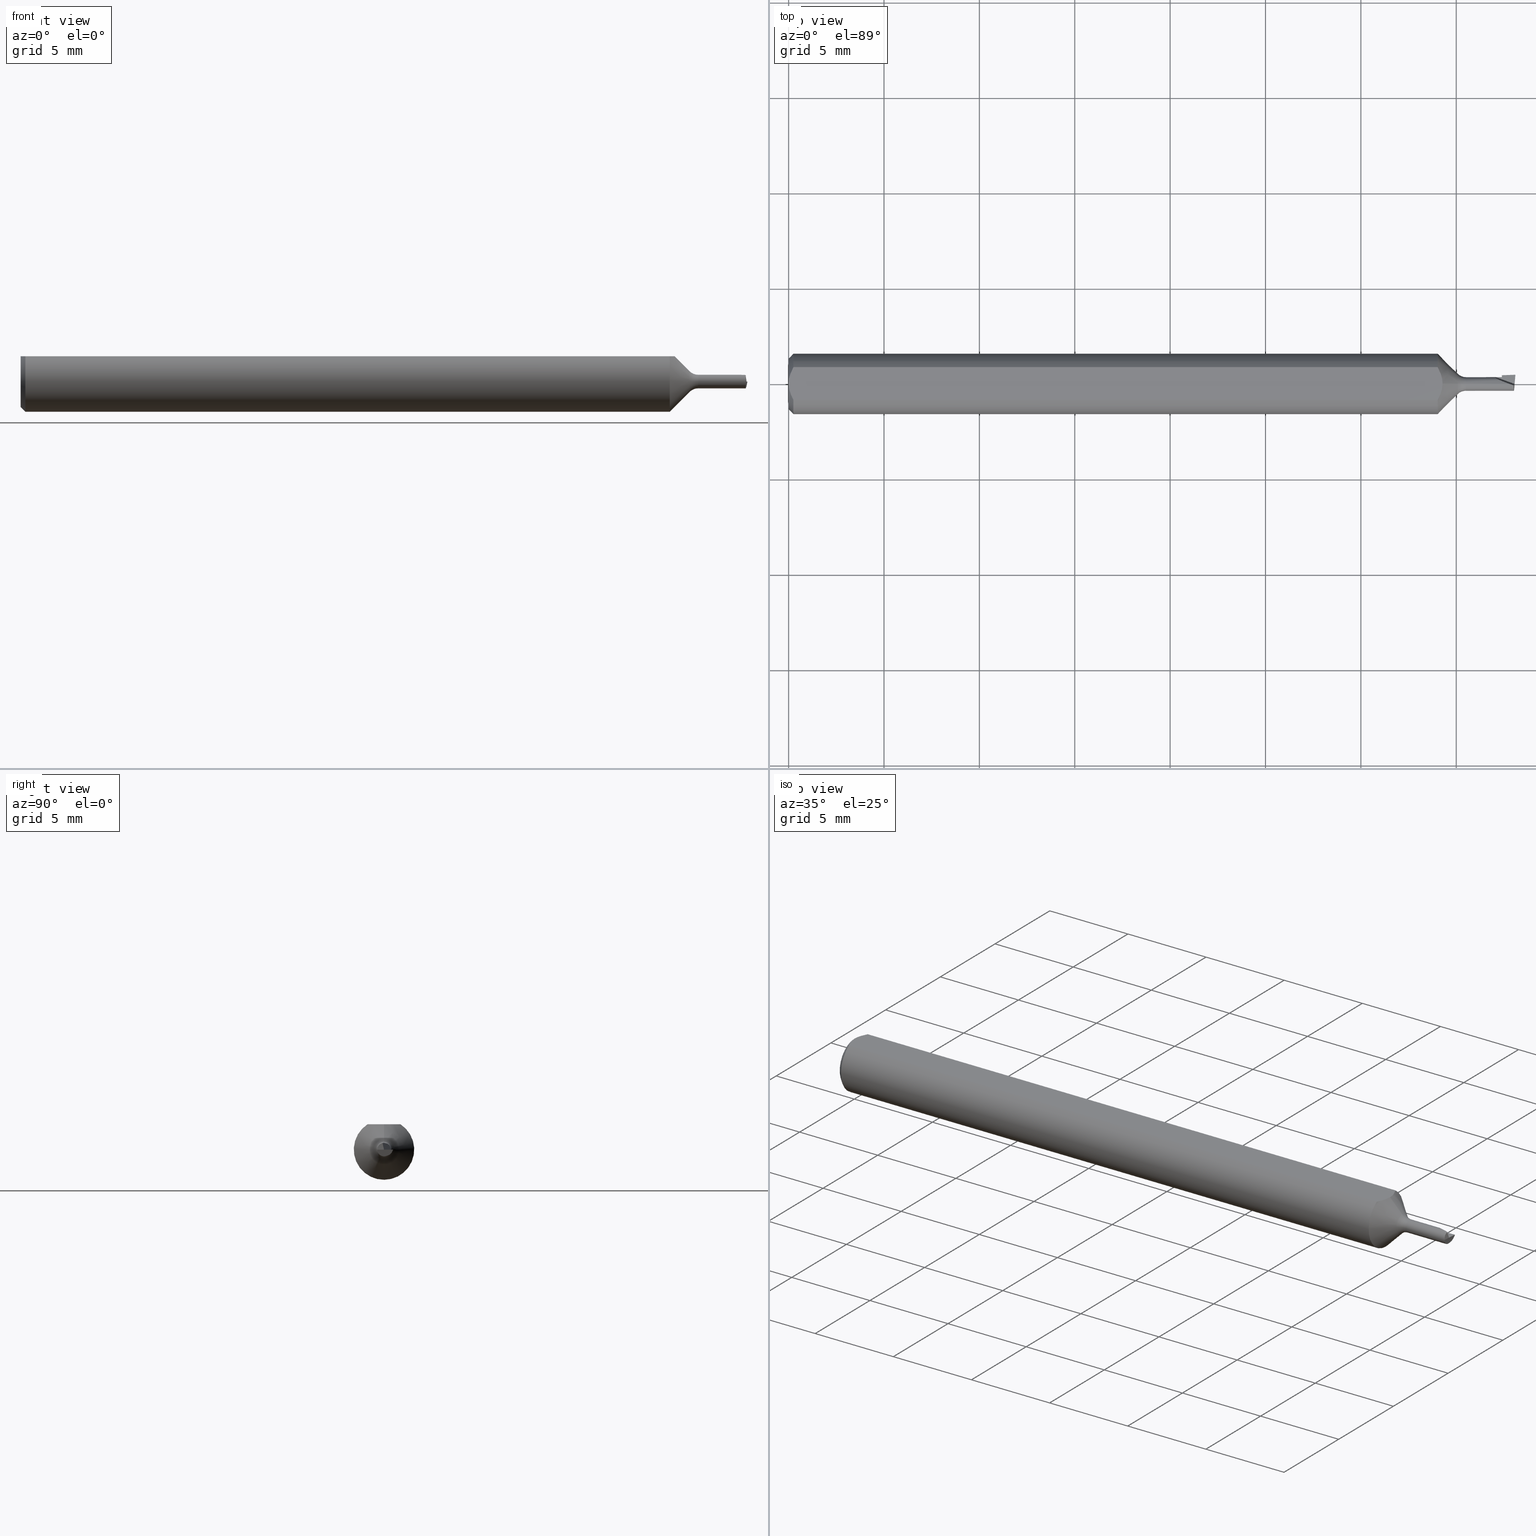
[diagram: canonical four-view strip — front | top / right | iso, engineering-drawing reading convention]
A machine part, canonical four-view strip (front | top / right | iso — engineering-drawing reading convention). The complete STEP part file that produces these views, byte-faithful:
ISO-10303-21;
HEADER;
FILE_DESCRIPTION (( 'STEP AP203' ),
    '1' );
FILE_NAME ('210022-MB035100.STEP',
    '2025-01-29T00:55:24',
    ( '' ),
    ( '' ),
    'SwSTEP 2.0',
    'SolidWorks 2024',
    '' );
FILE_SCHEMA (( 'CONFIG_CONTROL_DESIGN' ));
ENDSEC;

DATA;
#1 = DIRECTION ( 'NONE',  ( 4.188400406518391662E-17, 1.150753554054429622E-16, -1.000000000000000000 ) ) ;
#2 = ORIENTED_EDGE ( 'NONE', *, *, #119, .F. ) ;
#3 = AXIS2_PLACEMENT_3D ( 'NONE', #605, #601, #114 ) ;
#4 = DIRECTION ( 'NONE',  ( 0.000000000000000000, 0.000000000000000000, 1.000000000000000000 ) ) ;
#5 = CARTESIAN_POINT ( 'NONE',  ( 1.495955894638859140, -0.01400000000000024836, -0.008201010126776540551 ) ) ;
#6 = ADVANCED_FACE ( 'NONE', ( #384 ), #142, .F. ) ;
#7 = EDGE_LOOP ( 'NONE', ( #477, #140, #108, #398, #572 ) ) ;
#8 = LENGTH_MEASURE_WITH_UNIT ( LENGTH_MEASURE( 0.02539999999999999897 ), #408 );
#9 = CARTESIAN_POINT ( 'NONE',  ( 1.398355339059327296, 0.000000000000000000, 0.000000000000000000 ) ) ;
#10 = VERTEX_POINT ( 'NONE', #245 ) ;
#11 = B_SPLINE_CURVE_WITH_KNOTS ( 'NONE', 3,
 ( #488, #257, #293, #485, #393, #101 ),
 .UNSPECIFIED., .F., .F.,
 ( 4, 2, 4 ),
 ( 0.0009229516234078821539, 0.001371626545108044996, 0.001820301466808207621 ),
 .UNSPECIFIED. ) ;
#12 = EDGE_CURVE ( 'NONE', #629, #254, #440, .T. ) ;
#13 = CARTESIAN_POINT ( 'NONE',  ( 1.498337715393007308, 5.146152409351648335E-34, -4.471984806147503012E-18 ) ) ;
#14 = CARTESIAN_POINT ( 'NONE',  ( 1.471999999999999975, 0.01715059310839218629, -0.008656183423197036028 ) ) ;
#15 = ORIENTED_EDGE ( 'NONE', *, *, #361, .F. ) ;
#16 = DIRECTION ( 'NONE',  ( 0.9864997997699033183, -0.08630754905047478831, 0.1391731009600657154 ) ) ;
#17 = DIRECTION ( 'NONE',  ( 0.9396926207859126468, -0.3420201433256568335, 0.000000000000000000 ) ) ;
#18 =( NAMED_UNIT ( * ) PLANE_ANGLE_UNIT ( ) SI_UNIT ( $, .RADIAN. ) );
#19 = CARTESIAN_POINT ( 'NONE',  ( 1.339650000000000007, 0.000000000000000000, 0.000000000000000000 ) ) ;
#20 = EDGE_CURVE ( 'NONE', #10, #148, #331, .T. ) ;
#21 = COORDINATED_UNIVERSAL_TIME_OFFSET ( 8, 0, .BEHIND. ) ;
#22 = CARTESIAN_POINT ( 'NONE',  ( 1.496362627902979137, 1.714505518806302634E-18, -0.01400000000000006795 ) ) ;
#23 = SHAPE_DEFINITION_REPRESENTATION ( #627, #347 ) ;
#24 = DIRECTION ( 'NONE',  ( -0.1627401076574671590, -0.4218543546513214282, -0.8919386530593642615 ) ) ;
#25 = B_SPLINE_CURVE_WITH_KNOTS ( 'NONE', 3,
 ( #221, #621, #322, #275, #468, #429 ),
 .UNSPECIFIED., .F., .F.,
 ( 4, 2, 4 ),
 ( 0.001820301466808207621, 0.002269751589840481119, 0.002719201712872754834 ),
 .UNSPECIFIED. ) ;
#26 = ORIENTED_EDGE ( 'NONE', *, *, #634, .T. ) ;
#27 = TOROIDAL_SURFACE ( 'NONE', #242, 0.03900000000000000688, 0.02499999999999986955 ) ;
#28 = EDGE_CURVE ( 'NONE', #505, #48, #390, .T. ) ;
#29 = CARTESIAN_POINT ( 'NONE',  ( 1.487340442959101727, 0.000000000000000000, 0.01400000000000006795 ) ) ;
#30 = VERTEX_POINT ( 'NONE', #156 ) ;
#31 = PERSON_AND_ORGANIZATION ( #584, #445 ) ;
#32 = CC_DESIGN_PERSON_AND_ORGANIZATION_ASSIGNMENT ( #265, #406, ( #632 ) ) ;
#33 = CIRCLE ( 'NONE', #197, 0.02132233047033647161 ) ;
#34 = DIRECTION ( 'NONE',  ( -1.000000000000000000, -0.000000000000000000, -0.000000000000000000 ) ) ;
#35 = VERTEX_POINT ( 'NONE', #441 ) ;
#36 = LINE ( 'NONE', #418, #223 ) ;
#37 = EDGE_CURVE ( 'NONE', #469, #490, #272, .T. ) ;
#38 = LOCAL_TIME ( 16, 55, 24.00000000000000000, #624 ) ;
#39 = VERTEX_POINT ( 'NONE', #348 ) ;
#40 = DIRECTION ( 'NONE',  ( 0.000000000000000000, -0.4228298219691066784, -0.9062091048171904140 ) ) ;
#41 = ORIENTED_EDGE ( 'NONE', *, *, #97, .F. ) ;
#42 = CC_DESIGN_PERSON_AND_ORGANIZATION_ASSIGNMENT ( #470, #232, ( #312 ) ) ;
#43 = LINE ( 'NONE', #237, #590 ) ;
#44 = ORIENTED_EDGE ( 'NONE', *, *, #97, .T. ) ;
#45 = ORIENTED_EDGE ( 'NONE', *, *, #20, .F. ) ;
#46 = DIRECTION ( 'NONE',  ( -1.000000000000000000, -0.000000000000000000, -0.000000000000000000 ) ) ;
#47 = DIRECTION ( 'NONE',  ( -1.000000000000000000, -0.000000000000000000, -0.000000000000000000 ) ) ;
#48 = VERTEX_POINT ( 'NONE', #603 ) ;
#49 = EDGE_CURVE ( 'NONE', #365, #209, #158, .T. ) ;
#50 = VECTOR ( 'NONE', #514, 39.37007874015748854 ) ;
#51 = DIRECTION ( 'NONE',  ( 1.000000000000000000, 0.000000000000000000, 0.000000000000000000 ) ) ;
#52 = DIRECTION ( 'NONE',  ( 0.000000000000000000, 0.000000000000000000, 1.000000000000000000 ) ) ;
#53 = CARTESIAN_POINT ( 'NONE',  ( 1.380677669529663865, 2.611232376085963916E-18, -0.02132233047033647161 ) ) ;
#54 = PRODUCT_DEFINITION ( 'UNKNOWN', '', #228, #227 ) ;
#55 = CARTESIAN_POINT ( 'NONE',  ( 1.496362627902979137, 1.714505518806302634E-18, -0.01400000000000006795 ) ) ;
#56 = AXIS2_PLACEMENT_3D ( 'NONE', #9, #344, #58 ) ;
#57 = DIRECTION ( 'NONE',  ( 0.000000000000000000, 0.000000000000000000, -1.000000000000000000 ) ) ;
#58 = DIRECTION ( 'NONE',  ( 0.000000000000000000, 0.000000000000000000, 1.000000000000000000 ) ) ;
#59 = EDGE_CURVE ( 'NONE', #306, #626, #301, .T. ) ;
#60 = ORIENTED_EDGE ( 'NONE', *, *, #375, .T. ) ;
#61 = CARTESIAN_POINT ( 'NONE',  ( 0.000000000000000000, -0.03386738844375220686, 0.05235000000000000070 ) ) ;
#62 = ORIENTED_EDGE ( 'NONE', *, *, #203, .F. ) ;
#63 = LINE ( 'NONE', #164, #50 ) ;
#64 = DIRECTION ( 'NONE',  ( -1.000000000000000000, -0.000000000000000000, -0.000000000000000000 ) ) ;
#65 = AXIS2_PLACEMENT_3D ( 'NONE', #329, #81, #319 ) ;
#66 = ORIENTED_EDGE ( 'NONE', *, *, #622, .T. ) ;
#67 = LINE ( 'NONE', #512, #608 ) ;
#68 = APPROVAL_PERSON_ORGANIZATION ( #109, #230, #424 ) ;
#69 = CARTESIAN_POINT ( 'NONE',  ( 1.339650000000000007, 0.03386738844375220686, 0.05235000000000000070 ) ) ;
#70 = ADVANCED_FACE ( 'NONE', ( #340 ), #434, .F. ) ;
#71 = DIRECTION ( 'NONE',  ( -1.000000000000000000, 0.000000000000000000, -0.000000000000000000 ) ) ;
#72 = LINE ( 'NONE', #13, #609 ) ;
#73 = DIRECTION ( 'NONE',  ( 0.1396943646708924958, 0.000000000000000000, -0.9901946699913082295 ) ) ;
#74 = PLANE ( 'NONE',  #241 ) ;
#75 = EDGE_LOOP ( 'NONE', ( #212, #259, #623, #153 ) ) ;
#76 = EDGE_CURVE ( 'NONE', #10, #578, #195, .T. ) ;
#77 = CARTESIAN_POINT ( 'NONE',  ( 0.000000000000000000, 0.000000000000000000, 0.000000000000000000 ) ) ;
#78 = ORIENTED_EDGE ( 'NONE', *, *, #28, .F. ) ;
#79 = AXIS2_PLACEMENT_3D ( 'NONE', #351, #64, #218 ) ;
#80 = VECTOR ( 'NONE', #239, 39.37007874015748854 ) ;
#81 = DIRECTION ( 'NONE',  ( -1.000000000000000000, -0.000000000000000000, -0.000000000000000000 ) ) ;
#82 = ORIENTED_EDGE ( 'NONE', *, *, #602, .F. ) ;
#83 = CALENDAR_DATE ( 2025, 28, 1 ) ;
#84 = EDGE_CURVE ( 'NONE', #180, #490, #328, .T. ) ;
#85 = CIRCLE ( 'NONE', #65, 0.05235000000000033377 ) ;
#86 = LINE ( 'NONE', #132, #262 ) ;
#87 = EDGE_LOOP ( 'NONE', ( #453, #309, #60, #531, #537 ) ) ;
#88 = AXIS2_PLACEMENT_3D ( 'NONE', #596, #295, #252 ) ;
#89 = FACE_OUTER_BOUND ( 'NONE', #220, .T. ) ;
#90 = EDGE_CURVE ( 'NONE', #48, #302, #644, .T. ) ;
#91 = ORIENTED_EDGE ( 'NONE', *, *, #90, .F. ) ;
#92 = ORIENTED_EDGE ( 'NONE', *, *, #49, .T. ) ;
#93 = LINE ( 'NONE', #290, #116 ) ;
#94 = ORIENTED_EDGE ( 'NONE', *, *, #483, .F. ) ;
#95 = FACE_OUTER_BOUND ( 'NONE', #278, .T. ) ;
#96 = CARTESIAN_POINT ( 'NONE',  ( 0.009999999999999887451, 0.000000000000000000, 0.000000000000000000 ) ) ;
#97 = EDGE_CURVE ( 'NONE', #302, #600, #11, .T. ) ;
#98 = CARTESIAN_POINT ( 'NONE',  ( 1.339650000000000007, -0.03386738844375220686, 0.05235000000000000070 ) ) ;
#99 = DIRECTION ( 'NONE',  ( 0.1293675338645381145, 0.9317961139776900215, 0.3391460498927904021 ) ) ;
#100 = CARTESIAN_POINT ( 'NONE',  ( 1.349650000000000238, 0.005921060704595571683, 0.05235000000000002152 ) ) ;
#101 = CARTESIAN_POINT ( 'NONE',  ( 0.000000000000000000, 0.000000000000000000, 0.05235000000000033377 ) ) ;
#102 = CARTESIAN_POINT ( 'NONE',  ( 1.490212539364918376, -0.001045357601660149016, 0.01400000000000006968 ) ) ;
#103 = ADVANCED_FACE ( 'NONE', ( #449 ), #495, .T. ) ;
#104 = CARTESIAN_POINT ( 'NONE',  ( 1.495645132487424922, -0.008201010126776844128, -0.01400000000000006795 ) ) ;
#105 = ORIENTED_EDGE ( 'NONE', *, *, #37, .T. ) ;
#106 = CARTESIAN_POINT ( 'NONE',  ( 1.348578451796299094, -0.01191733704899615789, 0.05235000000000002152 ) ) ;
#107 = DIRECTION ( 'NONE',  ( -1.000000000000000000, -0.000000000000000000, -0.000000000000000000 ) ) ;
#108 = ORIENTED_EDGE ( 'NONE', *, *, #12, .F. ) ;
#109 = PERSON_AND_ORGANIZATION ( #584, #445 ) ;
#110 = CONICAL_SURFACE ( 'NONE', #323, 0.05235000000000033377, 0.7853981633974376209 ) ;
#111 = CARTESIAN_POINT ( 'NONE',  ( 1.500296196177055341, 0.02238553779562375834, 4.140457115397399095E-16 ) ) ;
#112 = B_SPLINE_CURVE_WITH_KNOTS ( 'NONE', 3,
 ( #540, #394, #106, #256, #595, #98 ),
 .UNSPECIFIED., .F., .F.,
 ( 4, 2, 4 ),
 ( 0.002995647966321671272, 0.003444829281114806727, 0.003894010595907941748 ),
 .UNSPECIFIED. ) ;
#113 = ORIENTED_EDGE ( 'NONE', *, *, #513, .F. ) ;
#114 = DIRECTION ( 'NONE',  ( 1.000000000000000000, 0.000000000000000000, 0.000000000000000000 ) ) ;
#115 = CARTESIAN_POINT ( 'NONE',  ( 1.471999999999999975, 0.01730310589320959921, -0.001541202432580578109 ) ) ;
#116 = VECTOR ( 'NONE', #179, 39.37007874015748143 ) ;
#117 = ADVANCED_FACE ( 'NONE', ( #592 ), #639, .F. ) ;
#118 = CARTESIAN_POINT ( 'NONE',  ( 1.398355339059327296, 1.714505518806310916E-18, -0.01400000000000013560 ) ) ;
#119 = EDGE_CURVE ( 'NONE', #148, #35, #377, .T. ) ;
#120 = COORDINATED_UNIVERSAL_TIME_OFFSET ( 8, 0, .BEHIND. ) ;
#121 = FACE_OUTER_BOUND ( 'NONE', #570, .T. ) ;
#122 = CARTESIAN_POINT ( 'NONE',  ( 0.000000000000000000, 0.000000000000000000, 0.01400000000000006795 ) ) ;
#123 = EDGE_CURVE ( 'NONE', #542, #365, #298, .T. ) ;
#124 = ORIENTED_EDGE ( 'NONE', *, *, #199, .T. ) ;
#125 = COORDINATED_UNIVERSAL_TIME_OFFSET ( 8, 0, .BEHIND. ) ;
#126 = FACE_OUTER_BOUND ( 'NONE', #137, .T. ) ;
#127 = ORIENTED_EDGE ( 'NONE', *, *, #175, .T. ) ;
#128 = DATE_TIME_ROLE ( 'classification_date' ) ;
#129 = CARTESIAN_POINT ( 'NONE',  ( 1.495771991143534096, -0.009748761780967543991, 0.01214095763564205545 ) ) ;
#130 = VERTEX_POINT ( 'NONE', #364 ) ;
#131 = AXIS2_PLACEMENT_3D ( 'NONE', #508, #16, #73 ) ;
#132 = CARTESIAN_POINT ( 'NONE',  ( 1.498061498182345908, 0.01245110719910164088, -0.009679404705626219740 ) ) ;
#133 = ORIENTED_EDGE ( 'NONE', *, *, #327, .F. ) ;
#134 = EDGE_CURVE ( 'NONE', #337, #231, #67, .T. ) ;
#135 = SECURITY_CLASSIFICATION_LEVEL ( 'unclassified' ) ;
#136 = CARTESIAN_POINT ( 'NONE',  ( 0.000000000000000000, 1.714505518806302634E-18, -0.01400000000000006795 ) ) ;
#137 = EDGE_LOOP ( 'NONE', ( #177, #124, #281, #631, #431, #326 ) ) ;
#138 = AXIS2_PLACEMENT_3D ( 'NONE', #396, #150, #546 ) ;
#139 =( BOUNDED_CURVE ( )  B_SPLINE_CURVE ( 3, ( #412, #615, #563, #463 ),
 .UNSPECIFIED., .F., .T. ) 
 B_SPLINE_CURVE_WITH_KNOTS ( ( 4, 4 ),
 ( 4.990162771046303014, 6.560959097841198684 ),
 .UNSPECIFIED. ) 
 CURVE ( )  GEOMETRIC_REPRESENTATION_ITEM ( )  RATIONAL_B_SPLINE_CURVE ( ( 1.000000000000000000, 0.8047378541243652705, 0.8047378541243652705, 1.000000000000000000 ) ) 
 REPRESENTATION_ITEM ( '' )  );
#140 = ORIENTED_EDGE ( 'NONE', *, *, #564, .T. ) ;
#141 = DATE_AND_TIME ( #576, #38 ) ;
#142 = PLANE ( 'NONE',  #410 ) ;
#143 = CARTESIAN_POINT ( 'NONE',  ( 1.470115918604895766, 0.01515687352215219601, -0.005999999999999994053 ) ) ;
#144 = ORIENTED_EDGE ( 'NONE', *, *, #216, .F. ) ;
#145 = CARTESIAN_POINT ( 'NONE',  ( 0.009999999999999887451, 0.000000000000000000, 0.000000000000000000 ) ) ;
#146 = AXIS2_PLACEMENT_3D ( 'NONE', #471, #34, #225 ) ;
#147 = CARTESIAN_POINT ( 'NONE',  ( 1.496505873018313171, 0.001637299160382967370, -0.01400000000000006101 ) ) ;
#148 = VERTEX_POINT ( 'NONE', #22 ) ;
#149 = CARTESIAN_POINT ( 'NONE',  ( 1.344987470951200415, 0.02320690041070301232, 0.05235000000000002152 ) ) ;
#150 = DIRECTION ( 'NONE',  ( -0.9864997997699062049, 0.08630754905046410241, 0.1391731009600518376 ) ) ;
#151 = ADVANCED_FACE ( 'NONE', ( #172 ), #213, .T. ) ;
#152 = DIRECTION ( 'NONE',  ( 0.000000000000000000, -0.7073221891495885538, -0.7068913075831626536 ) ) ;
#153 = ORIENTED_EDGE ( 'NONE', *, *, #49, .F. ) ;
#154 = CC_DESIGN_PERSON_AND_ORGANIZATION_ASSIGNMENT ( #271, #224, ( #228 ) ) ;
#155 = CARTESIAN_POINT ( 'NONE',  ( 0.000000000000000000, 0.000000000000000000, 0.000000000000000000 ) ) ;
#156 = CARTESIAN_POINT ( 'NONE',  ( 1.380677669529663865, 2.611232376085951590E-18, -0.02132233047033637099 ) ) ;
#157 = ORIENTED_EDGE ( 'NONE', *, *, #327, .T. ) ;
#158 = LINE ( 'NONE', #496, #249 ) ;
#159 = EDGE_LOOP ( 'NONE', ( #238, #516, #349, #610 ) ) ;
#160 = MECHANICAL_CONTEXT ( 'NONE', #200, 'mechanical' ) ;
#161 = CONICAL_SURFACE ( 'NONE', #277, 0.02132233047033647161, 0.7853981633974437271 ) ;
#162 = LINE ( 'NONE', #311, #359 ) ;
#163 = EDGE_CURVE ( 'NONE', #352, #490, #553, .T. ) ;
#164 = CARTESIAN_POINT ( 'NONE',  ( 0.9559111876246143558, 3.129011652829888628E-33, -2.719097970026246924E-17 ) ) ;
#165 = DIRECTION ( 'NONE',  ( -0.000000000000000000, 1.000000000000000000, 1.224646799147353207E-16 ) ) ;
#166 = AXIS2_PLACEMENT_3D ( 'NONE', #425, #579, #40 ) ;
#167 = APPLICATION_PROTOCOL_DEFINITION ( 'international standard', 'config_control_design', 1994, #200 ) ;
#168 = AXIS2_PLACEMENT_3D ( 'NONE', #643, #1, #544 ) ;
#169 = FACE_OUTER_BOUND ( 'NONE', #191, .T. ) ;
#170 = ADVANCED_FACE ( 'NONE', ( #316 ), #433, .F. ) ;
#171 = LOCAL_TIME ( 16, 55, 24.00000000000000000, #120 ) ;
#172 = FACE_OUTER_BOUND ( 'NONE', #443, .T. ) ;
#173 = VERTEX_POINT ( 'NONE', #219 ) ;
#174 = APPROVAL_DATE_TIME ( #141, #264 ) ;
#175 = EDGE_CURVE ( 'NONE', #39, #580, #607, .T. ) ;
#176 = CYLINDRICAL_SURFACE ( 'NONE', #146, 0.06235000000000000264 ) ;
#177 = ORIENTED_EDGE ( 'NONE', *, *, #12, .T. ) ;
#178 = DIMENSIONAL_EXPONENTS ( 1.000000000000000000, 0.000000000000000000, 0.000000000000000000, 0.000000000000000000, 0.000000000000000000, 0.000000000000000000, 0.000000000000000000 ) ;
#179 = DIRECTION ( 'NONE',  ( 1.000000000000000000, 0.000000000000000000, 0.000000000000000000 ) ) ;
#180 = VERTEX_POINT ( 'NONE', #118 ) ;
#181 = DIRECTION ( 'NONE',  ( 0.000000000000000000, 0.000000000000000000, 1.000000000000000000 ) ) ;
#182 = ORIENTED_EDGE ( 'NONE', *, *, #20, .T. ) ;
#183 = ADVANCED_FACE ( 'NONE', ( #515 ), #74, .F. ) ;
#184 = DIRECTION ( 'NONE',  ( 0.000000000000000000, 0.000000000000000000, 1.000000000000000000 ) ) ;
#185 = ORIENTED_EDGE ( 'NONE', *, *, #622, .F. ) ;
#186 = APPLICATION_CONTEXT ( 'configuration controlled 3d designs of mechanical parts and assemblies' ) ;
#187 = LINE ( 'NONE', #582, #282 ) ;
#188 = ORIENTED_EDGE ( 'NONE', *, *, #554, .F. ) ;
#189 = EDGE_CURVE ( 'NONE', #352, #173, #139, .T. ) ;
#190 = LINE ( 'NONE', #61, #637 ) ;
#191 = EDGE_LOOP ( 'NONE', ( #404, #26, #428, #15 ) ) ;
#192 = AXIS2_PLACEMENT_3D ( 'NONE', #569, #507, #269 ) ;
#193 = CIRCLE ( 'NONE', #556, 0.02132233047033647161 ) ;
#194 = CARTESIAN_POINT ( 'NONE',  ( 1.380677669529663865, 0.000000000000000000, 0.000000000000000000 ) ) ;
#195 = LINE ( 'NONE', #304, #528 ) ;
#196 = DIRECTION ( 'NONE',  ( 0.000000000000000000, 0.000000000000000000, 1.000000000000000000 ) ) ;
#197 = AXIS2_PLACEMENT_3D ( 'NONE', #625, #628, #184 ) ;
#198 = DIRECTION ( 'NONE',  ( 0.000000000000000000, 0.000000000000000000, -1.000000000000000000 ) ) ;
#199 = EDGE_CURVE ( 'NONE', #254, #480, #555, .T. ) ;
#200 = APPLICATION_CONTEXT ( 'configuration controlled 3d designs of mechanical parts and assemblies' ) ;
#201 = CARTESIAN_POINT ( 'NONE',  ( 1.497812481840041787, 0.01135586058943797300, -0.01076529357563074142 ) ) ;
#202 = CC_DESIGN_APPROVAL ( #264, ( #312 ) ) ;
#203 = EDGE_CURVE ( 'NONE', #39, #35, #618, .T. ) ;
#204 = EDGE_LOOP ( 'NONE', ( #234, #82, #185, #263, #133 ) ) ;
#205 = CARTESIAN_POINT ( 'NONE',  ( 1.349650000000000238, -3.532469938474420466E-21, 0.05235000000000001458 ) ) ;
#206 = CARTESIAN_POINT ( 'NONE',  ( 1.398355339059327296, 0.000000000000000000, 0.03900000000000000688 ) ) ;
#207 = ORIENTED_EDGE ( 'NONE', *, *, #258, .F. ) ;
#208 = DIRECTION ( 'NONE',  ( 0.000000000000000000, 0.000000000000000000, 1.000000000000000000 ) ) ;
#209 = VERTEX_POINT ( 'NONE', #503 ) ;
#210 = ADVANCED_FACE ( 'NONE', ( #169 ), #261, .T. ) ;
#211 = CARTESIAN_POINT ( 'NONE',  ( 1.497253126782585930, -0.001536370480482567372, 0.006735109514287551322 ) ) ;
#212 = ORIENTED_EDGE ( 'NONE', *, *, #461, .T. ) ;
#213 = CYLINDRICAL_SURFACE ( 'NONE', #79, 0.01400000000000006795 ) ;
#214 = CARTESIAN_POINT ( 'NONE',  ( 1.380677669529663865, 0.000000000000000000, 0.000000000000000000 ) ) ;
#215 = DIRECTION ( 'NONE',  ( 0.000000000000000000, 0.3420201433256629953, -0.9396926207859105373 ) ) ;
#216 = EDGE_CURVE ( 'NONE', #626, #209, #362, .T. ) ;
#217 = APPROVAL_DATE_TIME ( #459, #370 ) ;
#218 = DIRECTION ( 'NONE',  ( 0.000000000000000000, 0.000000000000000000, 1.000000000000000000 ) ) ;
#219 = CARTESIAN_POINT ( 'NONE',  ( 1.459843793476639284, 0.01400000000000005407, -4.473209412501315043E-18 ) ) ;
#220 = EDGE_LOOP ( 'NONE', ( #450, #330 ) ) ;
#221 = CARTESIAN_POINT ( 'NONE',  ( 0.000000000000000000, 0.000000000000000000, 0.05235000000000033377 ) ) ;
#222 = ORIENTED_EDGE ( 'NONE', *, *, #602, .T. ) ;
#223 = VECTOR ( 'NONE', #229, 39.37007874015748854 ) ;
#224 = PERSON_AND_ORGANIZATION_ROLE ( 'design_supplier' ) ;
#225 = DIRECTION ( 'NONE',  ( 0.000000000000000000, 0.000000000000000000, 1.000000000000000000 ) ) ;
#226 = ORIENTED_EDGE ( 'NONE', *, *, #504, .F. ) ;
#227 = DESIGN_CONTEXT ( 'detailed design', #186, 'design' ) ;
#228 = PRODUCT_DEFINITION_FORMATION_WITH_SPECIFIED_SOURCE ( 'ANY', '', #632, .NOT_KNOWN. ) ;
#229 = DIRECTION ( 'NONE',  ( -0.9982962607160562607, -0.05482988347611531671, -0.01995644553358989076 ) ) ;
#230 = APPROVAL ( #376, 'UNSPECIFIED' ) ;
#231 = VERTEX_POINT ( 'NONE', #403 ) ;
#232 = PERSON_AND_ORGANIZATION_ROLE ( 'classification_officer' ) ;
#233 = DIRECTION ( 'NONE',  ( 1.000000000000000000, 0.000000000000000000, 0.000000000000000000 ) ) ;
#234 = ORIENTED_EDGE ( 'NONE', *, *, #341, .T. ) ;
#235 = EDGE_CURVE ( 'NONE', #306, #542, #162, .T. ) ;
#236 = ORIENTED_EDGE ( 'NONE', *, *, #134, .T. ) ;
#237 = CARTESIAN_POINT ( 'NONE',  ( 1.405832867359513516, 0.03365836943178409507, -4.473209412501315043E-18 ) ) ;
#238 = ORIENTED_EDGE ( 'NONE', *, *, #346, .F. ) ;
#239 = DIRECTION ( 'NONE',  ( 0.9993908270190960952, 0.03489949670248750774, -0.000000000000000000 ) ) ;
#240 = CARTESIAN_POINT ( 'NONE',  ( 1.496362627902979137, 1.714505518806302634E-18, -0.01400000000000006795 ) ) ;
#241 = AXIS2_PLACEMENT_3D ( 'NONE', #273, #457, #71 ) ;
#242 = AXIS2_PLACEMENT_3D ( 'NONE', #292, #46, #196 ) ;
#243 = ORIENTED_EDGE ( 'NONE', *, *, #634, .F. ) ;
#244 = FACE_OUTER_BOUND ( 'NONE', #87, .T. ) ;
#245 = CARTESIAN_POINT ( 'NONE',  ( 1.496900660646560244, 0.004788282006559283106, -0.01315569669100274432 ) ) ;
#246 = CARTESIAN_POINT ( 'NONE',  ( 0.000000000000000000, 0.03386738844375220686, 0.05235000000000000070 ) ) ;
#247 = ADVANCED_FACE ( 'NONE', ( #121 ), #314, .F. ) ;
#248 = DIRECTION ( 'NONE',  ( 0.000000000000000000, -1.000000000000000000, 0.000000000000000000 ) ) ;
#249 = VECTOR ( 'NONE', #550, 39.37007874015748854 ) ;
#250 = ORIENTED_EDGE ( 'NONE', *, *, #84, .F. ) ;
#251 = CARTESIAN_POINT ( 'NONE',  ( 1.339650000000000007, -0.03386738844375220686, 0.05235000000000000070 ) ) ;
#252 = DIRECTION ( 'NONE',  ( 0.000000000000000000, 0.000000000000000000, 1.000000000000000000 ) ) ;
#253 = APPROVAL_PERSON_ORGANIZATION ( #31, #264, #462 ) ;
#254 = VERTEX_POINT ( 'NONE', #460 ) ;
#255 = AXIS2_PLACEMENT_3D ( 'NONE', #452, #215, #409 ) ;
#256 = CARTESIAN_POINT ( 'NONE',  ( 1.344984136213919879, -0.02321572383389658781, 0.05235000000000001458 ) ) ;
#257 = CARTESIAN_POINT ( 'NONE',  ( 0.007185421074056205608, 0.02868573718286560742, 0.05235000000000002152 ) ) ;
#258 = EDGE_CURVE ( 'NONE', #30, #180, #338, .T. ) ;
#259 = ORIENTED_EDGE ( 'NONE', *, *, #305, .T. ) ;
#260 = LINE ( 'NONE', #354, #405 ) ;
#261 = PLANE ( 'NONE',  #255 ) ;
#262 = VECTOR ( 'NONE', #479, 39.37007874015748143 ) ;
#263 = ORIENTED_EDGE ( 'NONE', *, *, #235, .F. ) ;
#264 = APPROVAL ( #415, 'UNSPECIFIED' ) ;
#265 = PERSON_AND_ORGANIZATION ( #584, #445 ) ;
#266 = DIRECTION ( 'NONE',  ( -0.1550261498412154604, -0.2183092626835780037, 0.9634873941531157948 ) ) ;
#267 = DIRECTION ( 'NONE',  ( 0.000000000000000000, -0.4228298219691066784, -0.9062091048171904140 ) ) ;
#268 =( CONVERSION_BASED_UNIT ( 'INCH', #8 ) LENGTH_UNIT ( ) NAMED_UNIT ( #178 ) );
#269 = DIRECTION ( 'NONE',  ( 0.000000000000000000, 0.000000000000000000, 1.000000000000000000 ) ) ;
#270 = CC_DESIGN_PERSON_AND_ORGANIZATION_ASSIGNMENT ( #534, #466, ( #228 ) ) ;
#271 = PERSON_AND_ORGANIZATION ( #584, #445 ) ;
#272 = CIRCLE ( 'NONE', #633, 0.02499999999999986955 ) ;
#273 = CARTESIAN_POINT ( 'NONE',  ( 1.500000000000000222, 0.06235000000000000264, 0.05235000000000001458 ) ) ;
#274 = ORIENTED_EDGE ( 'NONE', *, *, #407, .F. ) ;
#275 = CARTESIAN_POINT ( 'NONE',  ( 0.004679365186825695105, -0.02325953974091124477, 0.05235000000000000764 ) ) ;
#276 = VECTOR ( 'NONE', #358, 39.37007874015748143 ) ;
#277 = AXIS2_PLACEMENT_3D ( 'NONE', #194, #294, #538 ) ;
#278 = EDGE_LOOP ( 'NONE', ( #78, #345, #41, #91 ) ) ;
#279 = ADVANCED_FACE ( 'NONE', ( #518 ), #535, .F. ) ;
#280 = DIRECTION ( 'NONE',  ( -0.7071067811865507924, 0.000000000000000000, 0.7071067811865442421 ) ) ;
#281 = ORIENTED_EDGE ( 'NONE', *, *, #513, .T. ) ;
#282 = VECTOR ( 'NONE', #280, 39.37007874015748143 ) ;
#283 = AXIS2_PLACEMENT_3D ( 'NONE', #437, #107, #208 ) ;
#284 = CARTESIAN_POINT ( 'NONE',  ( 1.471999999999999975, 0.01400000000000000203, 0.000000000000000000 ) ) ;
#285 = ORIENTED_EDGE ( 'NONE', *, *, #235, .T. ) ;
#286 = APPROVAL_PERSON_ORGANIZATION ( #357, #370, #561 ) ;
#287 = PLANE ( 'NONE',  #506 ) ;
#288 = ADVANCED_FACE ( 'NONE', ( #521 ), #529, .T. ) ;
#289 = EDGE_LOOP ( 'NONE', ( #597, #44, #419, #113, #94, #188 ) ) ;
#290 = CARTESIAN_POINT ( 'NONE',  ( 2.815793228919349341E-33, 0.01400000000000006795, -6.561731279301039999E-17 ) ) ;
#291 = ORIENTED_EDGE ( 'NONE', *, *, #258, .T. ) ;
#292 = CARTESIAN_POINT ( 'NONE',  ( 1.398355339059327296, 0.000000000000000000, 0.000000000000000000 ) ) ;
#293 = CARTESIAN_POINT ( 'NONE',  ( 0.004671770759546769666, 0.02323517832780105236, 0.05235000000000002152 ) ) ;
#294 = DIRECTION ( 'NONE',  ( -1.000000000000000000, -0.000000000000000000, -0.000000000000000000 ) ) ;
#295 = DIRECTION ( 'NONE',  ( -1.000000000000000000, -0.000000000000000000, -0.000000000000000000 ) ) ;
#296 = EDGE_CURVE ( 'NONE', #580, #35, #356, .T. ) ;
#297 = CARTESIAN_POINT ( 'NONE',  ( 0.000000000000000000, 0.000000000000000000, 0.000000000000000000 ) ) ;
#298 = LINE ( 'NONE', #115, #353 ) ;
#299 = DIRECTION ( 'NONE',  ( 1.000000000000000000, 0.000000000000000000, 0.000000000000000000 ) ) ;
#300 = CARTESIAN_POINT ( 'NONE',  ( 1.470115918604895766, 0.01515687352215219601, -0.005999999999999994053 ) ) ;
#301 = CIRCLE ( 'NONE', #283, 0.01400000000000000203 ) ;
#302 = VERTEX_POINT ( 'NONE', #373 ) ;
#303 = CARTESIAN_POINT ( 'NONE',  ( 1.398355339059327296, 0.000000000000000000, 0.01400000000000013560 ) ) ;
#304 = CARTESIAN_POINT ( 'NONE',  ( 1.497960045783344407, 0.01241872006294799519, -0.01037844436406525246 ) ) ;
#305 = EDGE_CURVE ( 'NONE', #231, #578, #86, .T. ) ;
#306 = VERTEX_POINT ( 'NONE', #573 ) ;
#307 = DIRECTION ( 'NONE',  ( -1.000000000000000000, -0.000000000000000000, -0.000000000000000000 ) ) ;
#308 = DIRECTION ( 'NONE',  ( -0.08715574274766191287, -0.9961946980917451011, -2.687938839382190035E-15 ) ) ;
#309 = ORIENTED_EDGE ( 'NONE', *, *, #593, .T. ) ;
#310 = CARTESIAN_POINT ( 'NONE',  ( 1.497112874103644131, -0.01400000000000007662, 3.158700231727869641E-16 ) ) ;
#311 = CARTESIAN_POINT ( 'NONE',  ( 1.471999999999999975, 0.01400000000000000203, -3.964058809059676423E-18 ) ) ;
#312 = SECURITY_CLASSIFICATION ( '', '', #135 ) ;
#313 = CALENDAR_DATE ( 2025, 28, 1 ) ;
#314 = PLANE ( 'NONE',  #438 ) ;
#315 =( NAMED_UNIT ( * ) SI_UNIT ( $, .STERADIAN. ) SOLID_ANGLE_UNIT ( ) );
#316 = FACE_OUTER_BOUND ( 'NONE', #317, .T. ) ;
#317 = EDGE_LOOP ( 'NONE', ( #574, #291, #533, #636 ) ) ;
#318 = DATE_AND_TIME ( #83, #532 ) ;
#319 = DIRECTION ( 'NONE',  ( 0.000000000000000000, 0.000000000000000000, -1.000000000000000000 ) ) ;
#320 = ORIENTED_EDGE ( 'NONE', *, *, #59, .F. ) ;
#321 = ADVANCED_FACE ( 'NONE', ( #333 ), #383, .F. ) ;
#322 = CARTESIAN_POINT ( 'NONE',  ( 0.001055043921644571291, -0.01186408073217194367, 0.05235000000000002152 ) ) ;
#323 = AXIS2_PLACEMENT_3D ( 'NONE', #399, #299, #342 ) ;
#324 = ORIENTED_EDGE ( 'NONE', *, *, #296, .F. ) ;
#325 = DIRECTION ( 'NONE',  ( 0.000000000000000000, 0.000000000000000000, -1.000000000000000000 ) ) ;
#326 = ORIENTED_EDGE ( 'NONE', *, *, #454, .T. ) ;
#327 = EDGE_CURVE ( 'NONE', #173, #306, #93, .T. ) ;
#328 = CIRCLE ( 'NONE', #56, 0.01400000000000013560 ) ;
#329 = CARTESIAN_POINT ( 'NONE',  ( 0.000000000000000000, 0.000000000000000000, 0.000000000000000000 ) ) ;
#330 = ORIENTED_EDGE ( 'NONE', *, *, #346, .T. ) ;
#331 =( BOUNDED_CURVE ( )  B_SPLINE_CURVE ( 3, ( #539, #401, #147, #240 ),
 .UNSPECIFIED., .F., .F. ) 
 B_SPLINE_CURVE_WITH_KNOTS ( ( 4, 4 ),
 ( 5.379018757165730413, 5.728084607564589703 ),
 .UNSPECIFIED. ) 
 CURVE ( )  GEOMETRIC_REPRESENTATION_ITEM ( )  RATIONAL_B_SPLINE_CURVE ( ( 1.000000000000000000, 0.9898718353414723836, 0.9898718353414723836, 1.000000000000000000 ) ) 
 REPRESENTATION_ITEM ( '' )  );
#332 = CC_DESIGN_SECURITY_CLASSIFICATION ( #312, ( #228 ) ) ;
#333 = FACE_OUTER_BOUND ( 'NONE', #482, .T. ) ;
#334 = ORIENTED_EDGE ( 'NONE', *, *, #59, .T. ) ;
#335 = VECTOR ( 'NONE', #566, 39.37007874015748854 ) ;
#336 = DIRECTION ( 'NONE',  ( 1.000000000000000000, 0.000000000000000000, 0.000000000000000000 ) ) ;
#337 = VERTEX_POINT ( 'NONE', #369 ) ;
#338 = CIRCLE ( 'NONE', #527, 0.02499999999999986955 ) ;
#339 = LINE ( 'NONE', #143, #80 ) ;
#340 = FACE_OUTER_BOUND ( 'NONE', #204, .T. ) ;
#341 = EDGE_CURVE ( 'NONE', #173, #39, #43, .T. ) ;
#342 = DIRECTION ( 'NONE',  ( 0.000000000000000000, 0.000000000000000000, -1.000000000000000000 ) ) ;
#343 = CARTESIAN_POINT ( 'NONE',  ( 1.339650000000000007, 0.03386738844375220686, 0.05235000000000000070 ) ) ;
#344 = DIRECTION ( 'NONE',  ( -1.000000000000000000, -0.000000000000000000, -0.000000000000000000 ) ) ;
#345 = ORIENTED_EDGE ( 'NONE', *, *, #575, .F. ) ;
#346 = EDGE_CURVE ( 'NONE', #505, #600, #85, .T. ) ;
#347 = ADVANCED_BREP_SHAPE_REPRESENTATION ( '210022-MB035100', ( #640, #3 ), #478 ) ;
#348 = CARTESIAN_POINT ( 'NONE',  ( 1.498336813090362263, -1.031336641984098816E-05, 2.948443803457594356E-16 ) ) ;
#349 = ORIENTED_EDGE ( 'NONE', *, *, #476, .F. ) ;
#350 = DATE_AND_TIME ( #363, #510 ) ;
#351 = CARTESIAN_POINT ( 'NONE',  ( 0.000000000000000000, 0.000000000000000000, 0.000000000000000000 ) ) ;
#352 = VERTEX_POINT ( 'NONE', #29 ) ;
#353 = VECTOR ( 'NONE', #267, 39.37007874015748143 ) ;
#354 = CARTESIAN_POINT ( 'NONE',  ( 1.560200597524541877, 0.004788282006559283974, -0.01315569669100274432 ) ) ;
#355 = DIRECTION ( 'NONE',  ( -0.000000000000000000, 1.000000000000000000, 1.150753554054429622E-16 ) ) ;
#356 =( BOUNDED_CURVE ( )  B_SPLINE_CURVE ( 3, ( #481, #129, #525, #577 ),
 .UNSPECIFIED., .F., .T. ) 
 B_SPLINE_CURVE_WITH_KNOTS ( ( 4, 4 ),
 ( 5.951623123754044897, 7.298880934359459616 ),
 .UNSPECIFIED. ) 
 CURVE ( )  GEOMETRIC_REPRESENTATION_ITEM ( )  RATIONAL_B_SPLINE_CURVE ( ( 1.000000000000000000, 0.8543753402904480376, 0.8543753402904480376, 1.000000000000000000 ) ) 
 REPRESENTATION_ITEM ( '' )  );
#357 = PERSON_AND_ORGANIZATION ( #584, #445 ) ;
#358 = DIRECTION ( 'NONE',  ( -1.000000000000000000, -0.000000000000000000, -0.000000000000000000 ) ) ;
#359 = VECTOR ( 'NONE', #355, 39.37007874015748143 ) ;
#360 = AXIS2_PLACEMENT_3D ( 'NONE', #96, #446, #198 ) ;
#361 = EDGE_CURVE ( 'NONE', #578, #209, #36, .T. ) ;
#362 = LINE ( 'NONE', #14, #335 ) ;
#363 = CALENDAR_DATE ( 2025, 28, 1 ) ;
#364 = CARTESIAN_POINT ( 'NONE',  ( 1.349650000000000238, -3.532469938474420466E-21, 0.05235000000000001458 ) ) ;
#365 = VERTEX_POINT ( 'NONE', #630 ) ;
#366 = CARTESIAN_POINT ( 'NONE',  ( 1.398355339059327296, 0.000000000000000000, 0.000000000000000000 ) ) ;
#367 = EDGE_CURVE ( 'NONE', #600, #551, #25, .T. ) ;
#368 = ORIENTED_EDGE ( 'NONE', *, *, #175, .F. ) ;
#369 = CARTESIAN_POINT ( 'NONE',  ( 1.499999999999999778, 0.01899999999999998912, -2.134256245050205639E-18 ) ) ;
#370 = APPROVAL ( #565, 'UNSPECIFIED' ) ;
#371 = EDGE_LOOP ( 'NONE', ( #127, #604, #62 ) ) ;
#372 = DATE_AND_TIME ( #381, #594 ) ;
#373 = CARTESIAN_POINT ( 'NONE',  ( 0.009999999999999890921, 0.03386738844375217911, 0.05235000000000001458 ) ) ;
#374 = ORIENTED_EDGE ( 'NONE', *, *, #341, .F. ) ;
#375 = EDGE_CURVE ( 'NONE', #469, #130, #187, .T. ) ;
#376 = APPROVAL_STATUS ( 'not_yet_approved' ) ;
#377 =( BOUNDED_CURVE ( )  B_SPLINE_CURVE ( 3, ( #55, #104, #5, #310 ),
 .UNSPECIFIED., .F., .F. ) 
 B_SPLINE_CURVE_WITH_KNOTS ( ( 4, 4 ),
 ( 5.728084607564589703, 7.298880934359509354 ),
 .UNSPECIFIED. ) 
 CURVE ( )  GEOMETRIC_REPRESENTATION_ITEM ( )  RATIONAL_B_SPLINE_CURVE ( ( 1.000000000000000000, 0.8047378541243596084, 0.8047378541243596084, 1.000000000000000000 ) ) 
 REPRESENTATION_ITEM ( '' )  );
#378 = LINE ( 'NONE', #136, #562 ) ;
#379 = ORIENTED_EDGE ( 'NONE', *, *, #123, .F. ) ;
#380 = ADVANCED_FACE ( 'NONE', ( #126 ), #176, .T. ) ;
#381 = CALENDAR_DATE ( 2025, 28, 1 ) ;
#382 = CLOSED_SHELL ( 'NONE', ( #288, #103, #170, #523, #247, #151, #321, #536, #492, #380, #413, #442, #70, #210, #279, #6, #117, #642, #183 ) ) ;
#383 = PLANE ( 'NONE',  #620 ) ;
#384 = FACE_OUTER_BOUND ( 'NONE', #75, .T. ) ;
#385 = CYLINDRICAL_SURFACE ( 'NONE', #585, 0.01400000000000006795 ) ;
#386 = ORIENTED_EDGE ( 'NONE', *, *, #163, .F. ) ;
#387 = CIRCLE ( 'NONE', #520, 0.06235000000000000264 ) ;
#388 = CARTESIAN_POINT ( 'NONE',  ( 0.000000000000000000, 0.000000000000000000, -0.05235000000000033377 ) ) ;
#389 = EDGE_CURVE ( 'NONE', #490, #180, #420, .T. ) ;
#390 = LINE ( 'NONE', #493, #549 ) ;
#391 = AXIS2_PLACEMENT_3D ( 'NONE', #77, #233, #427 ) ;
#392 = CARTESIAN_POINT ( 'NONE',  ( 1.342494366674541473, 0.02863089781642876377, 0.05235000000000002152 ) ) ;
#393 = CARTESIAN_POINT ( 'NONE',  ( -1.099542139246802830E-15, 0.005954997531773979953, 0.05235000000000002152 ) ) ;
#394 = CARTESIAN_POINT ( 'NONE',  ( 1.349650000000000238, -0.005923604052113098407, 0.05235000000000002152 ) ) ;
#395 = CC_DESIGN_APPROVAL ( #230, ( #228 ) ) ;
#396 = CARTESIAN_POINT ( 'NONE',  ( 1.495443673491786640, 0.02281007852008725550, -0.03465938240595513309 ) ) ;
#397 = EDGE_CURVE ( 'NONE', #469, #30, #33, .T. ) ;
#398 = ORIENTED_EDGE ( 'NONE', *, *, #554, .T. ) ;
#399 = CARTESIAN_POINT ( 'NONE',  ( 0.000000000000000000, 0.000000000000000000, 0.000000000000000000 ) ) ;
#400 = ORIENTED_EDGE ( 'NONE', *, *, #389, .T. ) ;
#401 = CARTESIAN_POINT ( 'NONE',  ( 1.496687052279564112, 0.003249724067528478311, -0.01371568598450397317 ) ) ;
#402 = ORIENTED_EDGE ( 'NONE', *, *, #189, .F. ) ;
#403 = CARTESIAN_POINT ( 'NONE',  ( 1.498905260308435183, 0.01616221948760026075, -0.005999999999999994053 ) ) ;
#404 = ORIENTED_EDGE ( 'NONE', *, *, #76, .F. ) ;
#405 = VECTOR ( 'NONE', #614, 39.37007874015748143 ) ;
#406 = PERSON_AND_ORGANIZATION_ROLE ( 'design_owner' ) ;
#407 = EDGE_CURVE ( 'NONE', #148, #180, #378, .T. ) ;
#408 =( LENGTH_UNIT ( ) NAMED_UNIT ( * ) SI_UNIT ( $, .METRE. ) );
#409 = DIRECTION ( 'NONE',  ( 0.000000000000000000, 0.9396926207859103153, 0.3420201433256629397 ) ) ;
#410 = AXIS2_PLACEMENT_3D ( 'NONE', #300, #599, #152 ) ;
#411 = PERSON_AND_ORGANIZATION_ROLE ( 'creator' ) ;
#412 = CARTESIAN_POINT ( 'NONE',  ( 1.487340442959101727, 0.000000000000000000, 0.01400000000000006795 ) ) ;
#413 = ADVANCED_FACE ( 'NONE', ( #89 ), #287, .F. ) ;
#414 = AXIS2_PLACEMENT_3D ( 'NONE', #19, #613, #416 ) ;
#415 = APPROVAL_STATUS ( 'not_yet_approved' ) ;
#416 = DIRECTION ( 'NONE',  ( 0.000000000000000000, 0.000000000000000000, 1.000000000000000000 ) ) ;
#417 = ORIENTED_EDGE ( 'NONE', *, *, #203, .T. ) ;
#418 = CARTESIAN_POINT ( 'NONE',  ( 1.559581083726037098, 0.01474840584595573691, -0.009530508083857301346 ) ) ;
#419 = ORIENTED_EDGE ( 'NONE', *, *, #367, .T. ) ;
#420 = CIRCLE ( 'NONE', #473, 0.01400000000000013560 ) ;
#421 = COORDINATED_UNIVERSAL_TIME_OFFSET ( 8, 0, .BEHIND. ) ;
#422 = DIRECTION ( 'NONE',  ( -1.000000000000000000, -0.000000000000000000, -0.000000000000000000 ) ) ;
#423 = ORIENTED_EDGE ( 'NONE', *, *, #163, .T. ) ;
#424 = APPROVAL_ROLE ( '' ) ;
#425 = CARTESIAN_POINT ( 'NONE',  ( 1.470018275189427071, 0.01795301509892537062, -2.215929918207309759E-18 ) ) ;
#426 = ORIENTED_EDGE ( 'NONE', *, *, #461, .F. ) ;
#427 = DIRECTION ( 'NONE',  ( 0.000000000000000000, 0.000000000000000000, -1.000000000000000000 ) ) ;
#428 = ORIENTED_EDGE ( 'NONE', *, *, #216, .T. ) ;
#429 = CARTESIAN_POINT ( 'NONE',  ( 0.01000000000000840841, -0.03386738844395137393, 0.05235000000000001458 ) ) ;
#430 = EDGE_LOOP ( 'NONE', ( #182, #447, #583, #386, #464, #157, #334, #243 ) ) ;
#431 = ORIENTED_EDGE ( 'NONE', *, *, #90, .T. ) ;
#432 = CARTESIAN_POINT ( 'NONE',  ( 0.01000000000000840841, -0.03386738844395137393, 0.05235000000000001458 ) ) ;
#433 = TOROIDAL_SURFACE ( 'NONE', #192, 0.03900000000000000688, 0.02499999999999986955 ) ;
#434 = PLANE ( 'NONE',  #168 ) ;
#435 = VECTOR ( 'NONE', #51, 39.37007874015748143 ) ;
#436 = CARTESIAN_POINT ( 'NONE',  ( 1.493158059509906543, -0.002084192502463034190, 0.01388340427013589305 ) ) ;
#437 = CARTESIAN_POINT ( 'NONE',  ( 1.471999999999999975, 0.000000000000000000, 0.000000000000000000 ) ) ;
#438 = AXIS2_PLACEMENT_3D ( 'NONE', #455, #559, #17 ) ;
#439 = DIRECTION ( 'NONE',  ( -0.7071067811865507924, 8.659560562354893415E-17, -0.7071067811865442421 ) ) ;
#440 = CIRCLE ( 'NONE', #88, 0.06235000000000000264 ) ;
#441 = CARTESIAN_POINT ( 'NONE',  ( 1.497112874103644131, -0.01400000000000007662, 3.158700231727869641E-16 ) ) ;
#442 = ADVANCED_FACE ( 'NONE', ( #95 ), #110, .T. ) ;
#443 = EDGE_LOOP ( 'NONE', ( #274, #522, #324, #557, #423, #250 ) ) ;
#444 = DIRECTION ( 'NONE',  ( -1.000000000000000000, -0.000000000000000000, -0.000000000000000000 ) ) ;
#445 = ORGANIZATION ( 'UNSPECIFIED', 'UNSPECIFIED', '' ) ;
#446 = DIRECTION ( 'NONE',  ( 1.000000000000000000, 0.000000000000000000, 0.000000000000000000 ) ) ;
#447 = ORIENTED_EDGE ( 'NONE', *, *, #407, .T. ) ;
#448 = CARTESIAN_POINT ( 'NONE',  ( 0.000000000000000000, 0.000000000000000000, 0.05235000000000033377 ) ) ;
#449 = FACE_OUTER_BOUND ( 'NONE', #7, .T. ) ;
#450 = ORIENTED_EDGE ( 'NONE', *, *, #575, .T. ) ;
#451 = FACE_OUTER_BOUND ( 'NONE', #371, .T. ) ;
#452 = CARTESIAN_POINT ( 'NONE',  ( 1.560200597524541877, 0.004788282006559283974, -0.01315569669100274432 ) ) ;
#453 = ORIENTED_EDGE ( 'NONE', *, *, #564, .F. ) ;
#454 = EDGE_CURVE ( 'NONE', #302, #629, #487, .T. ) ;
#455 = CARTESIAN_POINT ( 'NONE',  ( 1.405832867359513516, 0.03365836943178409507, -4.473209412501315043E-18 ) ) ;
#456 = DIRECTION ( 'NONE',  ( -0.08715574274766896279, -0.9961946980917445460, -1.182878904194729215E-16 ) ) ;
#457 = DIRECTION ( 'NONE',  ( 0.000000000000000000, 0.000000000000000000, -1.000000000000000000 ) ) ;
#458 =( BOUNDED_CURVE ( )  B_SPLINE_CURVE ( 3, ( #498, #436, #102, #641 ),
 .UNSPECIFIED., .F., .F. ) 
 B_SPLINE_CURVE_WITH_KNOTS ( ( 4, 4 ),
 ( 4.766624254856835385, 4.990162771046303014 ),
 .UNSPECIFIED. ) 
 CURVE ( )  GEOMETRIC_REPRESENTATION_ITEM ( )  RATIONAL_B_SPLINE_CURVE ( ( 1.000000000000000000, 0.9958402108223218807, 0.9958402108223218807, 1.000000000000000000 ) ) 
 REPRESENTATION_ITEM ( '' )  );
#459 = DATE_AND_TIME ( #313, #171 ) ;
#460 = CARTESIAN_POINT ( 'NONE',  ( 1.339650000000000007, 7.635672792683746671E-18, -0.06235000000000000264 ) ) ;
#461 = EDGE_CURVE ( 'NONE', #365, #231, #339, .T. ) ;
#462 = APPROVAL_ROLE ( '' ) ;
#463 = CARTESIAN_POINT ( 'NONE',  ( 1.459843793476639284, 0.01400000000000005407, -4.473209412501315043E-18 ) ) ;
#464 = ORIENTED_EDGE ( 'NONE', *, *, #189, .T. ) ;
#465 = VECTOR ( 'NONE', #266, 39.37007874015748854 ) ;
#466 = PERSON_AND_ORGANIZATION_ROLE ( 'creator' ) ;
#467 = CIRCLE ( 'NONE', #500, 0.05235000000000033377 ) ;
#468 = CARTESIAN_POINT ( 'NONE',  ( 0.007163450771416182694, -0.02864528976632487248, 0.05235000000000001458 ) ) ;
#469 = VERTEX_POINT ( 'NONE', #494 ) ;
#470 = PERSON_AND_ORGANIZATION ( #584, #445 ) ;
#471 = CARTESIAN_POINT ( 'NONE',  ( 0.000000000000000000, 0.000000000000000000, 0.000000000000000000 ) ) ;
#472 = ORIENTED_EDGE ( 'NONE', *, *, #305, .F. ) ;
#473 = AXIS2_PLACEMENT_3D ( 'NONE', #366, #422, #181 ) ;
#474 = UNCERTAINTY_MEASURE_WITH_UNIT (LENGTH_MEASURE( 1.000000000000000082E-05 ), #268, 'distance_accuracy_value', 'NONE');
#475 = DIRECTION ( 'NONE',  ( 1.000000000000000000, 0.000000000000000000, 0.000000000000000000 ) ) ;
#476 = EDGE_CURVE ( 'NONE', #551, #48, #387, .T. ) ;
#477 = ORIENTED_EDGE ( 'NONE', *, *, #397, .T. ) ;
#478 =( GEOMETRIC_REPRESENTATION_CONTEXT ( 3 ) GLOBAL_UNCERTAINTY_ASSIGNED_CONTEXT ( ( #474 ) ) GLOBAL_UNIT_ASSIGNED_CONTEXT ( ( #268, #18, #315 ) ) REPRESENTATION_CONTEXT ( 'NONE', 'WORKASPACE' ) );
#479 = DIRECTION ( 'NONE',  ( -0.1593925713349158002, -0.7010550863643477681, -0.6950653020299033535 ) ) ;
#480 = VERTEX_POINT ( 'NONE', #251 ) ;
#481 = CARTESIAN_POINT ( 'NONE',  ( 1.496140245165600069, -0.003103540699875354403, 0.01365166785137329232 ) ) ;
#482 = EDGE_LOOP ( 'NONE', ( #501, #92, #144, #320, #285 ) ) ;
#483 = EDGE_CURVE ( 'NONE', #130, #480, #112, .T. ) ;
#484 = FACE_OUTER_BOUND ( 'NONE', #430, .T. ) ;
#485 = CARTESIAN_POINT ( 'NONE',  ( 0.001063697276021357847, 0.01189177144351693735, 0.05235000000000001458 ) ) ;
#486 = CC_DESIGN_DATE_AND_TIME_ASSIGNMENT ( #318, #128, ( #312 ) ) ;
#487 = LINE ( 'NONE', #246, #435 ) ;
#488 = CARTESIAN_POINT ( 'NONE',  ( 0.009999999999999890921, 0.03386738844375217911, 0.05235000000000001458 ) ) ;
#489 = VECTOR ( 'NONE', #439, 39.37007874015748143 ) ;
#490 = VERTEX_POINT ( 'NONE', #303 ) ;
#491 = LINE ( 'NONE', #53, #489 ) ;
#492 = ADVANCED_FACE ( 'NONE', ( #244 ), #161, .T. ) ;
#493 = CARTESIAN_POINT ( 'NONE',  ( 0.000000000000000000, 0.000000000000000000, -0.05235000000000033377 ) ) ;
#494 = CARTESIAN_POINT ( 'NONE',  ( 1.380677669529663865, 0.000000000000000000, 0.02132233047033637099 ) ) ;
#495 = CONICAL_SURFACE ( 'NONE', #581, 0.02132233047033647161, 0.7853981633974437271 ) ;
#496 = CARTESIAN_POINT ( 'NONE',  ( 1.471999999999999975, 0.01761096046884075284, -0.003613161509207814953 ) ) ;
#497 = EDGE_LOOP ( 'NONE', ( #222, #417, #2, #45, #587, #472, #526 ) ) ;
#498 = CARTESIAN_POINT ( 'NONE',  ( 1.496140245165600069, -0.003103540699875354403, 0.01365166785137329232 ) ) ;
#499 = DIRECTION ( 'NONE',  ( 0.000000000000000000, 0.000000000000000000, -1.000000000000000000 ) ) ;
#500 = AXIS2_PLACEMENT_3D ( 'NONE', #598, #645, #57 ) ;
#501 = ORIENTED_EDGE ( 'NONE', *, *, #123, .T. ) ;
#502 = DIRECTION ( 'NONE',  ( 0.000000000000000000, 0.000000000000000000, 1.000000000000000000 ) ) ;
#503 = CARTESIAN_POINT ( 'NONE',  ( 1.471999999999999975, 0.009938149808368152219, -0.01128129810073843359 ) ) ;
#504 = EDGE_CURVE ( 'NONE', #580, #352, #458, .T. ) ;
#505 = VERTEX_POINT ( 'NONE', #388 ) ;
#506 = AXIS2_PLACEMENT_3D ( 'NONE', #155, #588, #638 ) ;
#507 = DIRECTION ( 'NONE',  ( -1.000000000000000000, -0.000000000000000000, -0.000000000000000000 ) ) ;
#508 = CARTESIAN_POINT ( 'NONE',  ( 1.491155917282976251, 0.02968992960932576378, 0.06931876481191033557 ) ) ;
#509 = DIRECTION ( 'NONE',  ( 0.000000000000000000, -1.224646799147353207E-16, 1.000000000000000000 ) ) ;
#510 = LOCAL_TIME ( 16, 55, 24.00000000000000000, #21 ) ;
#511 = PERSON_AND_ORGANIZATION ( #584, #445 ) ;
#512 = CARTESIAN_POINT ( 'NONE',  ( 1.499134075467371430, 0.01675535336588558633, -0.004745920181577928734 ) ) ;
#513 = EDGE_CURVE ( 'NONE', #480, #551, #190, .T. ) ;
#514 = DIRECTION ( 'NONE',  ( 0.9993908270190957621, 0.03489949670250165614, 4.587456144808678678E-17 ) ) ;
#515 = FACE_OUTER_BOUND ( 'NONE', #289, .T. ) ;
#516 = ORIENTED_EDGE ( 'NONE', *, *, #28, .T. ) ;
#517 = B_SPLINE_CURVE_WITH_KNOTS ( 'NONE', 3,
 ( #343, #392, #149, #545, #100, #205 ),
 .UNSPECIFIED., .F., .F.,
 ( 4, 2, 4 ),
 ( 0.002097671056027859606, 0.002546659511174765439, 0.002995647966321671272 ),
 .UNSPECIFIED. ) ;
#518 = FACE_OUTER_BOUND ( 'NONE', #519, .T. ) ;
#519 = EDGE_LOOP ( 'NONE', ( #66, #236, #426, #379 ) ) ;
#520 = AXIS2_PLACEMENT_3D ( 'NONE', #145, #336, #591 ) ;
#521 = FACE_OUTER_BOUND ( 'NONE', #159, .T. ) ;
#522 = ORIENTED_EDGE ( 'NONE', *, *, #119, .T. ) ;
#523 = ADVANCED_FACE ( 'NONE', ( #484 ), #385, .T. ) ;
#524 = APPROVAL_DATE_TIME ( #372, #230 ) ;
#525 = CARTESIAN_POINT ( 'NONE',  ( 1.496151460951153700, -0.01399999999999995519, 0.006814778688446889408 ) ) ;
#526 = ORIENTED_EDGE ( 'NONE', *, *, #134, .F. ) ;
#527 = AXIS2_PLACEMENT_3D ( 'NONE', #612, #165, #509 ) ;
#528 = VECTOR ( 'NONE', #99, 39.37007874015748143 ) ;
#529 = CONICAL_SURFACE ( 'NONE', #391, 0.05235000000000033377, 0.7853981633974376209 ) ;
#530 = DIRECTION ( 'NONE',  ( -1.000000000000000000, -0.000000000000000000, -0.000000000000000000 ) ) ;
#531 = ORIENTED_EDGE ( 'NONE', *, *, #483, .T. ) ;
#532 = LOCAL_TIME ( 16, 55, 24.00000000000000000, #421 ) ;
#533 = ORIENTED_EDGE ( 'NONE', *, *, #84, .T. ) ;
#534 = PERSON_AND_ORGANIZATION ( #584, #445 ) ;
#535 = PLANE ( 'NONE',  #166 ) ;
#536 = ADVANCED_FACE ( 'NONE', ( #586 ), #27, .F. ) ;
#537 = ORIENTED_EDGE ( 'NONE', *, *, #199, .F. ) ;
#538 = DIRECTION ( 'NONE',  ( 0.000000000000000000, 0.000000000000000000, 1.000000000000000000 ) ) ;
#539 = CARTESIAN_POINT ( 'NONE',  ( 1.496900660646560244, 0.004788282006559283106, -0.01315569669100274432 ) ) ;
#540 = CARTESIAN_POINT ( 'NONE',  ( 1.349650000000000238, -3.532469938474420466E-21, 0.05235000000000001458 ) ) ;
#541 = CARTESIAN_POINT ( 'NONE',  ( 1.380677669529663865, 0.000000000000000000, 0.000000000000000000 ) ) ;
#542 = VERTEX_POINT ( 'NONE', #543 ) ;
#543 = CARTESIAN_POINT ( 'NONE',  ( 1.471999999999999975, 0.01802221845423144023, -2.215929918207309759E-18 ) ) ;
#544 = DIRECTION ( 'NONE',  ( 0.000000000000000000, 1.000000000000000000, 1.150753554054429622E-16 ) ) ;
#545 = CARTESIAN_POINT ( 'NONE',  ( 1.348578772065486708, 0.01191466962039928676, 0.05235000000000001458 ) ) ;
#546 = DIRECTION ( 'NONE',  ( 0.1396943646708783959, 0.000000000000000000, 0.9901946699913101169 ) ) ;
#547 = EDGE_LOOP ( 'NONE', ( #207, #619, #105, #400 ) ) ;
#548 = CARTESIAN_POINT ( 'NONE',  ( 1.496140245165600069, -0.003103540699875354403, 0.01365166785137329232 ) ) ;
#549 = VECTOR ( 'NONE', #589, 39.37007874015748143 ) ;
#550 = DIRECTION ( 'NONE',  ( 0.000000000000000000, -0.7073221891495885538, -0.7068913075831626536 ) ) ;
#551 = VERTEX_POINT ( 'NONE', #432 ) ;
#552 = DATE_TIME_ROLE ( 'creation_date' ) ;
#553 = LINE ( 'NONE', #122, #276 ) ;
#554 = EDGE_CURVE ( 'NONE', #629, #130, #517, .T. ) ;
#555 = CIRCLE ( 'NONE', #414, 0.06235000000000000264 ) ;
#556 = AXIS2_PLACEMENT_3D ( 'NONE', #214, #307, #502 ) ;
#557 = ORIENTED_EDGE ( 'NONE', *, *, #504, .T. ) ;
#558 = PLANE ( 'NONE',  #131 ) ;
#559 = DIRECTION ( 'NONE',  ( -0.3303660895493411576, -0.9076733711903741675, -0.2588190451025159655 ) ) ;
#560 = CC_DESIGN_DATE_AND_TIME_ASSIGNMENT ( #350, #552, ( #54 ) ) ;
#561 = APPROVAL_ROLE ( '' ) ;
#562 = VECTOR ( 'NONE', #530, 39.37007874015748143 ) ;
#563 = CARTESIAN_POINT ( 'NONE',  ( 1.453418867683608173, 0.01400000000000007835, 0.008201010126776696676 ) ) ;
#564 = EDGE_CURVE ( 'NONE', #30, #254, #491, .T. ) ;
#565 = APPROVAL_STATUS ( 'not_yet_approved' ) ;
#566 = DIRECTION ( 'NONE',  ( -0.000000000000000000, 0.9396926207859103153, 0.3420201433256629397 ) ) ;
#567 = CARTESIAN_POINT ( 'NONE',  ( 1.471999999999999975, 0.004788282006559283974, -0.01315569669100274432 ) ) ;
#568 = PRODUCT_RELATED_PRODUCT_CATEGORY ( 'detail', '', ( #632 ) ) ;
#569 = CARTESIAN_POINT ( 'NONE',  ( 1.398355339059327296, 0.000000000000000000, 0.000000000000000000 ) ) ;
#570 = EDGE_LOOP ( 'NONE', ( #368, #374, #402, #226 ) ) ;
#571 = DIRECTION ( 'NONE',  ( 0.9396926207859126468, -0.3420201433256568335, -0.000000000000000000 ) ) ;
#572 = ORIENTED_EDGE ( 'NONE', *, *, #375, .F. ) ;
#573 = CARTESIAN_POINT ( 'NONE',  ( 1.471999999999999975, 0.01400000000000006795, -6.561731279301039999E-17 ) ) ;
#574 = ORIENTED_EDGE ( 'NONE', *, *, #593, .F. ) ;
#575 = EDGE_CURVE ( 'NONE', #600, #505, #467, .T. ) ;
#576 = CALENDAR_DATE ( 2025, 28, 1 ) ;
#577 = CARTESIAN_POINT ( 'NONE',  ( 1.497112874103644131, -0.01400000000000007662, 3.158700231727869641E-16 ) ) ;
#578 = VERTEX_POINT ( 'NONE', #201 ) ;
#579 = DIRECTION ( 'NONE',  ( 0.03162968562512431803, -0.9057556888204042478, 0.4226182617407003295 ) ) ;
#580 = VERTEX_POINT ( 'NONE', #548 ) ;
#581 = AXIS2_PLACEMENT_3D ( 'NONE', #541, #47, #52 ) ;
#582 = CARTESIAN_POINT ( 'NONE',  ( 1.380677669529663865, 0.000000000000000000, 0.02132233047033647161 ) ) ;
#583 = ORIENTED_EDGE ( 'NONE', *, *, #389, .F. ) ;
#584 = PERSON ( 'UNSPECIFIED', 'UNSPECIFIED', 'UNSPECIFIED', ('UNSPECIFIED'), ('UNSPECIFIED'), ('UNSPECIFIED') ) ;
#585 = AXIS2_PLACEMENT_3D ( 'NONE', #297, #444, #4 ) ;
#586 = FACE_OUTER_BOUND ( 'NONE', #547, .T. ) ;
#587 = ORIENTED_EDGE ( 'NONE', *, *, #76, .T. ) ;
#588 = DIRECTION ( 'NONE',  ( 1.000000000000000000, 0.000000000000000000, 0.000000000000000000 ) ) ;
#589 = DIRECTION ( 'NONE',  ( 0.7071067811865550112, 0.000000000000000000, -0.7071067811865400232 ) ) ;
#590 = VECTOR ( 'NONE', #571, 39.37007874015748854 ) ;
#591 = DIRECTION ( 'NONE',  ( 0.000000000000000000, 0.000000000000000000, -1.000000000000000000 ) ) ;
#592 = FACE_OUTER_BOUND ( 'NONE', #497, .T. ) ;
#593 = EDGE_CURVE ( 'NONE', #30, #469, #193, .T. ) ;
#594 = LOCAL_TIME ( 16, 55, 24.00000000000000000, #125 ) ;
#595 = CARTESIAN_POINT ( 'NONE',  ( 1.342499562682859970, -0.02862133194396089889, 0.05235000000000002152 ) ) ;
#596 = CARTESIAN_POINT ( 'NONE',  ( 1.339650000000000007, 0.000000000000000000, 0.000000000000000000 ) ) ;
#597 = ORIENTED_EDGE ( 'NONE', *, *, #454, .F. ) ;
#598 = CARTESIAN_POINT ( 'NONE',  ( 0.000000000000000000, 0.000000000000000000, 0.000000000000000000 ) ) ;
#599 = DIRECTION ( 'NONE',  ( 0.02467767077832644027, -0.7066760308408337465, 0.7071067811865486830 ) ) ;
#600 = VERTEX_POINT ( 'NONE', #448 ) ;
#601 = DIRECTION ( 'NONE',  ( 0.000000000000000000, 0.000000000000000000, 1.000000000000000000 ) ) ;
#602 = EDGE_CURVE ( 'NONE', #337, #39, #72, .T. ) ;
#603 = CARTESIAN_POINT ( 'NONE',  ( 0.009999999999999887451, 0.000000000000000000, -0.06235000000000000264 ) ) ;
#604 = ORIENTED_EDGE ( 'NONE', *, *, #296, .T. ) ;
#605 = CARTESIAN_POINT ( 'NONE',  ( 0.000000000000000000, 0.000000000000000000, 0.000000000000000000 ) ) ;
#606 = CC_DESIGN_PERSON_AND_ORGANIZATION_ASSIGNMENT ( #511, #411, ( #54 ) ) ;
#607 = LINE ( 'NONE', #211, #465 ) ;
#608 = VECTOR ( 'NONE', #24, 39.37007874015748854 ) ;
#609 = VECTOR ( 'NONE', #456, 39.37007874015748854 ) ;
#610 = ORIENTED_EDGE ( 'NONE', *, *, #367, .F. ) ;
#611 = APPLICATION_PROTOCOL_DEFINITION ( 'international standard', 'config_control_design', 1994, #186 ) ;
#612 = CARTESIAN_POINT ( 'NONE',  ( 1.398355339059327296, 4.776122516674678488E-18, -0.03900000000000000688 ) ) ;
#613 = DIRECTION ( 'NONE',  ( -1.000000000000000000, -0.000000000000000000, -0.000000000000000000 ) ) ;
#614 = DIRECTION ( 'NONE',  ( -1.000000000000000000, 0.000000000000000000, 0.000000000000000000 ) ) ;
#615 = CARTESIAN_POINT ( 'NONE',  ( 1.464808352819063186, 0.008201010126776724432, 0.01400000000000005580 ) ) ;
#616 = CC_DESIGN_APPROVAL ( #370, ( #54 ) ) ;
#617 = VECTOR ( 'NONE', #308, 39.37007874015748854 ) ;
#618 = LINE ( 'NONE', #111, #617 ) ;
#619 = ORIENTED_EDGE ( 'NONE', *, *, #397, .F. ) ;
#620 = AXIS2_PLACEMENT_3D ( 'NONE', #284, #475, #325 ) ;
#621 = CARTESIAN_POINT ( 'NONE',  ( -1.070637973615595603E-15, -0.005965286321711177862, 0.05235000000000002152 ) ) ;
#622 = EDGE_CURVE ( 'NONE', #542, #337, #63, .T. ) ;
#623 = ORIENTED_EDGE ( 'NONE', *, *, #361, .T. ) ;
#624 = COORDINATED_UNIVERSAL_TIME_OFFSET ( 8, 0, .BEHIND. ) ;
#625 = CARTESIAN_POINT ( 'NONE',  ( 1.380677669529663865, 0.000000000000000000, 0.000000000000000000 ) ) ;
#626 = VERTEX_POINT ( 'NONE', #567 ) ;
#627 = PRODUCT_DEFINITION_SHAPE ( 'NONE', 'NONE',  #54 ) ;
#628 = DIRECTION ( 'NONE',  ( -1.000000000000000000, -0.000000000000000000, -0.000000000000000000 ) ) ;
#629 = VERTEX_POINT ( 'NONE', #69 ) ;
#630 = CARTESIAN_POINT ( 'NONE',  ( 1.471999999999999975, 0.01522266709425429583, -0.005999999999999994053 ) ) ;
#631 = ORIENTED_EDGE ( 'NONE', *, *, #476, .T. ) ;
#632 = PRODUCT ( '210022-MB035100', '210022-MB035100', '', ( #160 ) ) ;
#633 = AXIS2_PLACEMENT_3D ( 'NONE', #206, #248, #499 ) ;
#634 = EDGE_CURVE ( 'NONE', #10, #626, #260, .T. ) ;
#635 = DIRECTION ( 'NONE',  ( -1.000000000000000000, -0.000000000000000000, -0.000000000000000000 ) ) ;
#636 = ORIENTED_EDGE ( 'NONE', *, *, #37, .F. ) ;
#637 = VECTOR ( 'NONE', #635, 39.37007874015748143 ) ;
#638 = DIRECTION ( 'NONE',  ( 0.000000000000000000, 0.000000000000000000, -1.000000000000000000 ) ) ;
#639 = PLANE ( 'NONE',  #138 ) ;
#640 = MANIFOLD_SOLID_BREP ( 'Cut-Extrude8', #382 ) ;
#641 = CARTESIAN_POINT ( 'NONE',  ( 1.487340442959101727, 0.000000000000000000, 0.01400000000000006795 ) ) ;
#642 = ADVANCED_FACE ( 'NONE', ( #451 ), #558, .T. ) ;
#643 = CARTESIAN_POINT ( 'NONE',  ( 1.418351673465832352, 0.06805350652742639395, 9.160938846956043601E-21 ) ) ;
#644 = CIRCLE ( 'NONE', #360, 0.06235000000000000264 ) ;
#645 = DIRECTION ( 'NONE',  ( -1.000000000000000000, -0.000000000000000000, -0.000000000000000000 ) ) ;
ENDSEC;
END-ISO-10303-21;
